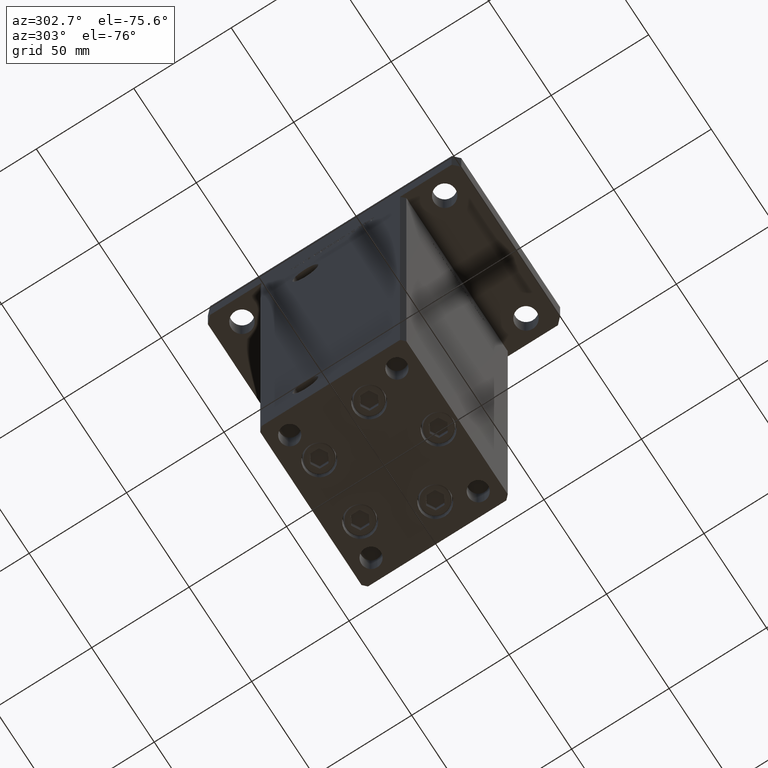
[diagram: clean part render]
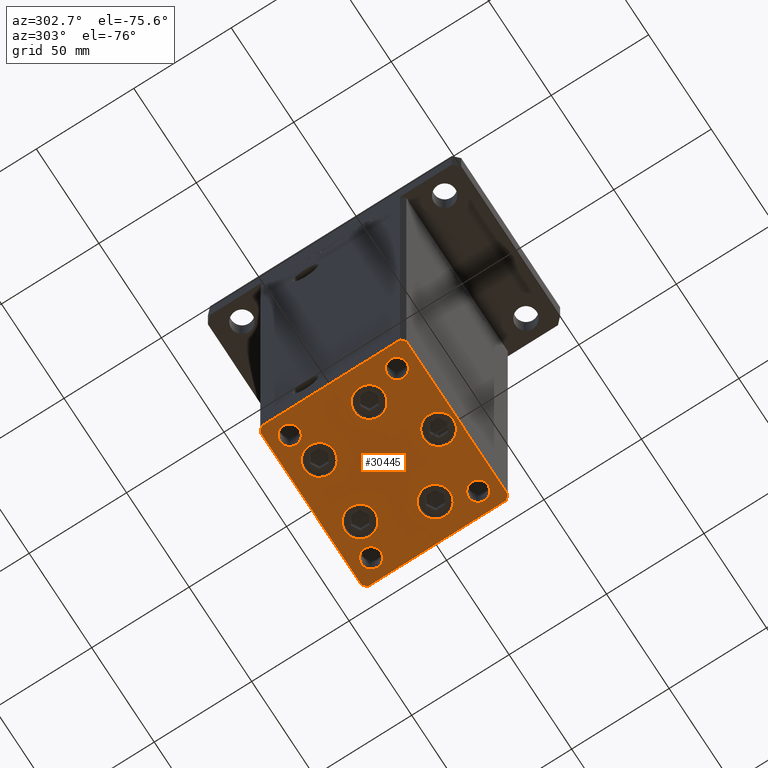
[diagram: same view with one face highlighted and labeled with its STEP entity id]
A machine part, auxiliary view. The second image highlights one B-rep face of the part: STEP entity #30445.
In plain terms, the highlighted planar face has unit normal (0, 0, -1).
Its self-contained STEP definition (entity closure, byte-faithful):
#67 = CARTESIAN_POINT ( 'NONE',  ( 16.32291334290542295, 22.75000000000000000, 0.000000000000000000 ) ) ;
#509 = AXIS2_PLACEMENT_3D ( 'NONE', #43362, #6211, #19212 ) ;
#910 = CARTESIAN_POINT ( 'NONE',  ( -26.39865316429776954, -9.333333333333337478, 0.000000000000000000 ) ) ;
#1427 = CARTESIAN_POINT ( 'NONE',  ( -42.50000000000000711, 35.49999999999997158, 0.000000000000000000 ) ) ;
#1456 = DIRECTION ( 'NONE',  ( 1.000000000000000000, 0.000000000000000000, 0.000000000000000000 ) ) ;
#1735 = EDGE_CURVE ( 'NONE', #12344, #39796, #25607, .T. ) ;
#1984 = AXIS2_PLACEMENT_3D ( 'NONE', #34098, #41986, #4835 ) ;
#2002 = EDGE_CURVE ( 'NONE', #39796, #12344, #46395, .T. ) ;
#2229 = CARTESIAN_POINT ( 'NONE',  ( 34.14865316429776954, -9.333333333333328596, 0.000000000000000000 ) ) ;
#2444 = CIRCLE ( 'NONE', #33596, 5.000000000000000888 ) ;
#2752 = AXIS2_PLACEMENT_3D ( 'NONE', #67, #36649, #24714 ) ;
#2984 = VERTEX_POINT ( 'NONE', #4224 ) ;
#3060 = EDGE_LOOP ( 'NONE', ( #40783, #8840 ) ) ;
#3405 = ORIENTED_EDGE ( 'NONE', *, *, #2002, .F. ) ;
#3641 = VECTOR ( 'NONE', #30944, 1000.000000000000000 ) ;
#3683 = DIRECTION ( 'NONE',  ( -1.172770800660376741E-15, 1.000000000000000000, 0.000000000000000000 ) ) ;
#4087 = CIRCLE ( 'NONE', #25719, 5.000000000000000888 ) ;
#4224 = CARTESIAN_POINT ( 'NONE',  ( -27.50000000000000000, -27.49999999999999645, 0.000000000000000000 ) ) ;
#4677 = DIRECTION ( 'NONE',  ( 0.000000000000000000, -0.000000000000000000, -1.000000000000000000 ) ) ;
#4835 = DIRECTION ( 'NONE',  ( 1.000000000000000000, 0.000000000000000000, 0.000000000000000000 ) ) ;
#4968 = VECTOR ( 'NONE', #46556, 1000.000000000000114 ) ;
#5275 = CARTESIAN_POINT ( 'NONE',  ( -16.32291334290543006, 22.74999999999999645, 0.000000000000000000 ) ) ;
#5277 = CARTESIAN_POINT ( 'NONE',  ( 26.39865316429776954, -9.333333333333330373, 0.000000000000000000 ) ) ;
#5343 = EDGE_CURVE ( 'NONE', #13420, #2984, #4087, .T. ) ;
#5487 = CARTESIAN_POINT ( 'NONE',  ( -32.50000000000000000, 27.50000000000000355, 0.000000000000000000 ) ) ;
#6200 = EDGE_CURVE ( 'NONE', #16035, #25210, #19563, .T. ) ;
#6211 = DIRECTION ( 'NONE',  ( 0.000000000000000000, -0.000000000000000000, -1.000000000000000000 ) ) ;
#6493 = EDGE_CURVE ( 'NONE', #29384, #8744, #20230, .T. ) ;
#6580 = AXIS2_PLACEMENT_3D ( 'NONE', #5275, #30211, #22621 ) ;
#6606 = DIRECTION ( 'NONE',  ( 1.000000000000000000, 1.713307136767217096E-16, 0.000000000000000000 ) ) ;
#7089 = FACE_BOUND ( 'NONE', #10376, .T. ) ;
#8107 = DIRECTION ( 'NONE',  ( 1.000000000000000000, 0.000000000000000000, 0.000000000000000000 ) ) ;
#8204 = CARTESIAN_POINT ( 'NONE',  ( 24.07291334290542650, 22.75000000000000000, 0.000000000000000000 ) ) ;
#8309 = CIRCLE ( 'NONE', #6580, 7.750000000000000000 ) ;
#8345 = DIRECTION ( 'NONE',  ( 1.000000000000000000, 0.000000000000000000, 0.000000000000000000 ) ) ;
#8356 = FACE_BOUND ( 'NONE', #35494, .T. ) ;
#8611 = ORIENTED_EDGE ( 'NONE', *, *, #52147, .T. ) ;
#8628 = FACE_OUTER_BOUND ( 'NONE', #30968, .T. ) ;
#8632 = CARTESIAN_POINT ( 'NONE',  ( 16.32291334290542295, 22.75000000000000000, 0.000000000000000000 ) ) ;
#8744 = VERTEX_POINT ( 'NONE', #9577 ) ;
#8840 = ORIENTED_EDGE ( 'NONE', *, *, #21190, .T. ) ;
#9039 = DIRECTION ( 'NONE',  ( 0.000000000000000000, -0.000000000000000000, -1.000000000000000000 ) ) ;
#9264 = ORIENTED_EDGE ( 'NONE', *, *, #6200, .T. ) ;
#9347 = EDGE_CURVE ( 'NONE', #2984, #13420, #2444, .T. ) ;
#9577 = CARTESIAN_POINT ( 'NONE',  ( 42.49999999999992895, 35.50000000000000000, 0.000000000000000000 ) ) ;
#9851 = DIRECTION ( 'NONE',  ( 0.000000000000000000, -0.000000000000000000, -1.000000000000000000 ) ) ;
#9852 = VERTEX_POINT ( 'NONE', #17670 ) ;
#10118 = EDGE_CURVE ( 'NONE', #22906, #36692, #42287, .T. ) ;
#10290 = VERTEX_POINT ( 'NONE', #25930 ) ;
#10362 = EDGE_CURVE ( 'NONE', #25210, #16035, #51194, .T. ) ;
#10376 = EDGE_LOOP ( 'NONE', ( #13886, #47735 ) ) ;
#10478 = VERTEX_POINT ( 'NONE', #20130 ) ;
#11327 = CARTESIAN_POINT ( 'NONE',  ( 42.50000000000000711, -35.50000000000000000, 0.000000000000000000 ) ) ;
#11724 = CARTESIAN_POINT ( 'NONE',  ( 32.50000000000000000, 27.49999999999999645, 0.000000000000000000 ) ) ;
#12344 = VERTEX_POINT ( 'NONE', #35189 ) ;
#12496 = ORIENTED_EDGE ( 'NONE', *, *, #49759, .F. ) ;
#12689 = FACE_BOUND ( 'NONE', #3060, .T. ) ;
#12891 = CARTESIAN_POINT ( 'NONE',  ( 27.50000000000000355, -27.49999999999999645, 0.000000000000000000 ) ) ;
#13420 = VERTEX_POINT ( 'NONE', #40580 ) ;
#13497 = VECTOR ( 'NONE', #6606, 1000.000000000000000 ) ;
#13625 = LINE ( 'NONE', #51291, #31647 ) ;
#13709 = CIRCLE ( 'NONE', #44009, 7.750000000000000000 ) ;
#13841 = ORIENTED_EDGE ( 'NONE', *, *, #5343, .T. ) ;
#13886 = ORIENTED_EDGE ( 'NONE', *, *, #10118, .T. ) ;
#14144 = VERTEX_POINT ( 'NONE', #37315 ) ;
#14864 = AXIS2_PLACEMENT_3D ( 'NONE', #28117, #44133, #51990 ) ;
#15248 = CIRCLE ( 'NONE', #509, 4.999999999999997335 ) ;
#15404 = ORIENTED_EDGE ( 'NONE', *, *, #49518, .T. ) ;
#15743 = EDGE_LOOP ( 'NONE', ( #40907, #29226 ) ) ;
#16011 = VERTEX_POINT ( 'NONE', #16970 ) ;
#16016 = DIRECTION ( 'NONE',  ( 0.000000000000000000, -0.000000000000000000, -1.000000000000000000 ) ) ;
#16035 = VERTEX_POINT ( 'NONE', #21571 ) ;
#16078 = DIRECTION ( 'NONE',  ( 1.000000000000000000, 0.000000000000000000, 0.000000000000000000 ) ) ;
#16122 = AXIS2_PLACEMENT_3D ( 'NONE', #8632, #17577, #38186 ) ;
#16481 = VERTEX_POINT ( 'NONE', #1427 ) ;
#16487 = ORIENTED_EDGE ( 'NONE', *, *, #40042, .T. ) ;
#16970 = CARTESIAN_POINT ( 'NONE',  ( -40.49999999999999289, -37.50000000000002132, 0.000000000000000000 ) ) ;
#17577 = DIRECTION ( 'NONE',  ( 0.000000000000000000, -0.000000000000000000, -1.000000000000000000 ) ) ;
#17618 = VECTOR ( 'NONE', #46641, 1000.000000000000114 ) ;
#17670 = CARTESIAN_POINT ( 'NONE',  ( 37.50000000000000000, 27.49999999999999645, 0.000000000000000000 ) ) ;
#17752 = DIRECTION ( 'NONE',  ( 1.000000000000000000, 0.000000000000000000, 0.000000000000000000 ) ) ;
#18025 = DIRECTION ( 'NONE',  ( 1.000000000000000000, 0.000000000000000000, 0.000000000000000000 ) ) ;
#18172 = LINE ( 'NONE', #33636, #17618 ) ;
#18276 = EDGE_LOOP ( 'NONE', ( #3405, #20922 ) ) ;
#18433 = CIRCLE ( 'NONE', #40952, 4.999999999999997335 ) ;
#18507 = EDGE_LOOP ( 'NONE', ( #27466, #12496 ) ) ;
#18547 = AXIS2_PLACEMENT_3D ( 'NONE', #49552, #24886, #25155 ) ;
#19212 = DIRECTION ( 'NONE',  ( 1.000000000000000000, 0.000000000000000000, 0.000000000000000000 ) ) ;
#19556 = FACE_BOUND ( 'NONE', #34949, .T. ) ;
#19563 = CIRCLE ( 'NONE', #16122, 7.750000000000003553 ) ;
#20130 = CARTESIAN_POINT ( 'NONE',  ( 37.50000000000000000, -27.49999999999999645, 0.000000000000000000 ) ) ;
#20230 = LINE ( 'NONE', #53282, #26487 ) ;
#20681 = CARTESIAN_POINT ( 'NONE',  ( -26.39865316429776954, -9.333333333333337478, 0.000000000000000000 ) ) ;
#20922 = ORIENTED_EDGE ( 'NONE', *, *, #1735, .F. ) ;
#21099 = EDGE_CURVE ( 'NONE', #52477, #48159, #48649, .T. ) ;
#21190 = EDGE_CURVE ( 'NONE', #43226, #30464, #26047, .T. ) ;
#21346 = VERTEX_POINT ( 'NONE', #50057 ) ;
#21571 = CARTESIAN_POINT ( 'NONE',  ( 8.572913342905422951, 22.75000000000000000, 0.000000000000000000 ) ) ;
#21642 = CARTESIAN_POINT ( 'NONE',  ( -34.14865316429776954, -9.333333333333337478, 0.000000000000000000 ) ) ;
#21900 = ORIENTED_EDGE ( 'NONE', *, *, #9347, .T. ) ;
#22106 = CARTESIAN_POINT ( 'NONE',  ( 26.39865316429776954, -9.333333333333330373, 0.000000000000000000 ) ) ;
#22228 = ORIENTED_EDGE ( 'NONE', *, *, #48701, .T. ) ;
#22621 = DIRECTION ( 'NONE',  ( 1.000000000000000000, 0.000000000000000000, 0.000000000000000000 ) ) ;
#22642 = DIRECTION ( 'NONE',  ( 0.000000000000000000, -0.000000000000000000, -1.000000000000000000 ) ) ;
#22906 = VERTEX_POINT ( 'NONE', #31729 ) ;
#23617 = FACE_BOUND ( 'NONE', #18507, .T. ) ;
#23620 = EDGE_CURVE ( 'NONE', #26211, #16481, #38300, .T. ) ;
#23666 = CARTESIAN_POINT ( 'NONE',  ( -40.49999999999999289, -37.50000000000002132, 0.000000000000000000 ) ) ;
#23915 = CARTESIAN_POINT ( 'NONE',  ( -18.64865316429776954, -9.333333333333335702, 0.000000000000000000 ) ) ;
#24339 = CARTESIAN_POINT ( 'NONE',  ( -32.50000000000000000, -27.49999999999999645, 0.000000000000000000 ) ) ;
#24496 = CARTESIAN_POINT ( 'NONE',  ( -42.50000000000000000, -35.50000000000000711, 0.000000000000000000 ) ) ;
#24607 = EDGE_LOOP ( 'NONE', ( #16487, #8611 ) ) ;
#24714 = DIRECTION ( 'NONE',  ( 1.000000000000000000, 0.000000000000000000, 0.000000000000000000 ) ) ;
#24886 = DIRECTION ( 'NONE',  ( -0.000000000000000000, 0.000000000000000000, 1.000000000000000000 ) ) ;
#25155 = DIRECTION ( 'NONE',  ( 1.000000000000000000, 0.000000000000000000, 0.000000000000000000 ) ) ;
#25210 = VERTEX_POINT ( 'NONE', #8204 ) ;
#25607 = CIRCLE ( 'NONE', #35961, 5.000000000000000888 ) ;
#25719 = AXIS2_PLACEMENT_3D ( 'NONE', #24339, #45493, #8345 ) ;
#25930 = CARTESIAN_POINT ( 'NONE',  ( 40.49999999999991473, 37.50000000000000711, 0.000000000000000000 ) ) ;
#26047 = CIRCLE ( 'NONE', #48566, 7.750000000000000000 ) ;
#26211 = VERTEX_POINT ( 'NONE', #52099 ) ;
#26487 = VECTOR ( 'NONE', #3683, 1000.000000000000000 ) ;
#26529 = CARTESIAN_POINT ( 'NONE',  ( 40.49999999999991473, 37.50000000000000711, 0.000000000000000000 ) ) ;
#26597 = EDGE_CURVE ( 'NONE', #9852, #14144, #45285, .T. ) ;
#27192 = EDGE_CURVE ( 'NONE', #10478, #31884, #18433, .T. ) ;
#27466 = ORIENTED_EDGE ( 'NONE', *, *, #26597, .F. ) ;
#27479 = AXIS2_PLACEMENT_3D ( 'NONE', #5277, #30741, #17752 ) ;
#27932 = EDGE_CURVE ( 'NONE', #52576, #29384, #18172, .T. ) ;
#28002 = LINE ( 'NONE', #39677, #40451 ) ;
#28117 = CARTESIAN_POINT ( 'NONE',  ( 3.429011037612589276E-15, -28.00000000000000000, 0.000000000000000000 ) ) ;
#28765 = AXIS2_PLACEMENT_3D ( 'NONE', #22106, #22642, #38642 ) ;
#29226 = ORIENTED_EDGE ( 'NONE', *, *, #40547, .T. ) ;
#29384 = VERTEX_POINT ( 'NONE', #11327 ) ;
#30007 = LINE ( 'NONE', #34613, #4968 ) ;
#30155 = DIRECTION ( 'NONE',  ( 1.000000000000000000, 0.000000000000000000, 0.000000000000000000 ) ) ;
#30211 = DIRECTION ( 'NONE',  ( 0.000000000000000000, -0.000000000000000000, -1.000000000000000000 ) ) ;
#30445 = ADVANCED_FACE ( 'NONE', ( #44240, #53614, #8356, #7089, #12689, #23617, #40159, #45774, #8628, #19556 ), #48550, .T. ) ;
#30464 = VERTEX_POINT ( 'NONE', #21642 ) ;
#30741 = DIRECTION ( 'NONE',  ( 0.000000000000000000, -0.000000000000000000, -1.000000000000000000 ) ) ;
#30944 = DIRECTION ( 'NONE',  ( -0.7071067811865463515, -0.7071067811865487940, 0.000000000000000000 ) ) ;
#30968 = EDGE_LOOP ( 'NONE', ( #22228, #42790, #33315, #32931, #35621, #42155, #51506, #37917 ) ) ;
#31128 = LINE ( 'NONE', #26529, #35251 ) ;
#31647 = VECTOR ( 'NONE', #42646, 1000.000000000000000 ) ;
#31729 = CARTESIAN_POINT ( 'NONE',  ( -7.749999999999996447, -28.00000000000000000, 0.000000000000000000 ) ) ;
#31835 = EDGE_CURVE ( 'NONE', #36692, #22906, #45440, .T. ) ;
#31884 = VERTEX_POINT ( 'NONE', #12891 ) ;
#32336 = ORIENTED_EDGE ( 'NONE', *, *, #21099, .T. ) ;
#32777 = CARTESIAN_POINT ( 'NONE',  ( -32.50000000000000000, -27.49999999999999645, 0.000000000000000000 ) ) ;
#32906 = VERTEX_POINT ( 'NONE', #24496 ) ;
#32931 = ORIENTED_EDGE ( 'NONE', *, *, #6493, .T. ) ;
#32946 = EDGE_CURVE ( 'NONE', #30464, #43226, #49797, .T. ) ;
#33315 = ORIENTED_EDGE ( 'NONE', *, *, #27932, .T. ) ;
#33396 = DIRECTION ( 'NONE',  ( 1.000000000000000000, 0.000000000000000000, 0.000000000000000000 ) ) ;
#33478 = CARTESIAN_POINT ( 'NONE',  ( -32.50000000000000000, 27.50000000000000355, 0.000000000000000000 ) ) ;
#33596 = AXIS2_PLACEMENT_3D ( 'NONE', #32777, #42738, #8107 ) ;
#33636 = CARTESIAN_POINT ( 'NONE',  ( 40.50000000000000000, -37.50000000000000711, 0.000000000000000000 ) ) ;
#33860 = CARTESIAN_POINT ( 'NONE',  ( -8.572913342905431833, 22.74999999999999645, 0.000000000000000000 ) ) ;
#34098 = CARTESIAN_POINT ( 'NONE',  ( 32.50000000000000000, 27.49999999999999645, 0.000000000000000000 ) ) ;
#34239 = DIRECTION ( 'NONE',  ( 1.000000000000000000, 0.000000000000000000, 0.000000000000000000 ) ) ;
#34613 = CARTESIAN_POINT ( 'NONE',  ( 42.49999999999992895, 35.50000000000000000, 0.000000000000000000 ) ) ;
#34840 = EDGE_CURVE ( 'NONE', #16481, #32906, #13625, .T. ) ;
#34949 = EDGE_LOOP ( 'NONE', ( #21900, #13841 ) ) ;
#35189 = CARTESIAN_POINT ( 'NONE',  ( -37.50000000000000711, 27.50000000000000355, 0.000000000000000000 ) ) ;
#35251 = VECTOR ( 'NONE', #47134, 1000.000000000000000 ) ;
#35494 = EDGE_LOOP ( 'NONE', ( #32336, #15404 ) ) ;
#35621 = ORIENTED_EDGE ( 'NONE', *, *, #44825, .T. ) ;
#35857 = DIRECTION ( 'NONE',  ( 0.7071067811865463515, -0.7071067811865487940, 0.000000000000000000 ) ) ;
#35961 = AXIS2_PLACEMENT_3D ( 'NONE', #33478, #50285, #18025 ) ;
#36649 = DIRECTION ( 'NONE',  ( 0.000000000000000000, -0.000000000000000000, -1.000000000000000000 ) ) ;
#36692 = VERTEX_POINT ( 'NONE', #40180 ) ;
#36734 = ORIENTED_EDGE ( 'NONE', *, *, #10362, .T. ) ;
#37315 = CARTESIAN_POINT ( 'NONE',  ( 27.50000000000000355, 27.49999999999999645, 0.000000000000000000 ) ) ;
#37499 = DIRECTION ( 'NONE',  ( -0.000000000000000000, 0.000000000000000000, 1.000000000000000000 ) ) ;
#37917 = ORIENTED_EDGE ( 'NONE', *, *, #34840, .T. ) ;
#38039 = DIRECTION ( 'NONE',  ( -0.000000000000000000, 0.000000000000000000, 1.000000000000000000 ) ) ;
#38186 = DIRECTION ( 'NONE',  ( 1.000000000000000000, 0.000000000000000000, 0.000000000000000000 ) ) ;
#38300 = LINE ( 'NONE', #51012, #3641 ) ;
#38642 = DIRECTION ( 'NONE',  ( 1.000000000000000000, 0.000000000000000000, 0.000000000000000000 ) ) ;
#38808 = CARTESIAN_POINT ( 'NONE',  ( 18.64865316429776954, -9.333333333333330373, 0.000000000000000000 ) ) ;
#39677 = CARTESIAN_POINT ( 'NONE',  ( -42.50000000000000000, -35.50000000000000711, 0.000000000000000000 ) ) ;
#39796 = VERTEX_POINT ( 'NONE', #48370 ) ;
#40042 = EDGE_CURVE ( 'NONE', #21346, #43683, #8309, .T. ) ;
#40091 = EDGE_CURVE ( 'NONE', #16011, #52576, #51877, .T. ) ;
#40159 = FACE_BOUND ( 'NONE', #15743, .T. ) ;
#40180 = CARTESIAN_POINT ( 'NONE',  ( 7.750000000000003553, -28.00000000000000000, 0.000000000000000000 ) ) ;
#40451 = VECTOR ( 'NONE', #35857, 1000.000000000000000 ) ;
#40547 = EDGE_CURVE ( 'NONE', #31884, #10478, #15248, .T. ) ;
#40580 = CARTESIAN_POINT ( 'NONE',  ( -37.50000000000000711, -27.49999999999999645, 0.000000000000000000 ) ) ;
#40783 = ORIENTED_EDGE ( 'NONE', *, *, #32946, .T. ) ;
#40907 = ORIENTED_EDGE ( 'NONE', *, *, #27192, .T. ) ;
#40952 = AXIS2_PLACEMENT_3D ( 'NONE', #53414, #16016, #49349 ) ;
#41111 = AXIS2_PLACEMENT_3D ( 'NONE', #52745, #45432, #45166 ) ;
#41986 = DIRECTION ( 'NONE',  ( -0.000000000000000000, 0.000000000000000000, 1.000000000000000000 ) ) ;
#42073 = AXIS2_PLACEMENT_3D ( 'NONE', #5487, #38039, #30155 ) ;
#42155 = ORIENTED_EDGE ( 'NONE', *, *, #44519, .T. ) ;
#42287 = CIRCLE ( 'NONE', #14864, 7.750000000000000000 ) ;
#42646 = DIRECTION ( 'NONE',  ( 9.773090005503140331E-17, -1.000000000000000000, 0.000000000000000000 ) ) ;
#42738 = DIRECTION ( 'NONE',  ( 0.000000000000000000, -0.000000000000000000, -1.000000000000000000 ) ) ;
#42790 = ORIENTED_EDGE ( 'NONE', *, *, #40091, .T. ) ;
#43226 = VERTEX_POINT ( 'NONE', #23915 ) ;
#43362 = CARTESIAN_POINT ( 'NONE',  ( 32.50000000000000000, -27.49999999999999645, 0.000000000000000000 ) ) ;
#43683 = VERTEX_POINT ( 'NONE', #33860 ) ;
#44009 = AXIS2_PLACEMENT_3D ( 'NONE', #51329, #9851, #1456 ) ;
#44133 = DIRECTION ( 'NONE',  ( 0.000000000000000000, -0.000000000000000000, -1.000000000000000000 ) ) ;
#44240 = FACE_BOUND ( 'NONE', #24607, .T. ) ;
#44252 = EDGE_LOOP ( 'NONE', ( #9264, #36734 ) ) ;
#44519 = EDGE_CURVE ( 'NONE', #10290, #26211, #31128, .T. ) ;
#44825 = EDGE_CURVE ( 'NONE', #8744, #10290, #30007, .T. ) ;
#45166 = DIRECTION ( 'NONE',  ( 1.000000000000000000, 0.000000000000000000, 0.000000000000000000 ) ) ;
#45285 = CIRCLE ( 'NONE', #1984, 4.999999999999997335 ) ;
#45432 = DIRECTION ( 'NONE',  ( 0.000000000000000000, -0.000000000000000000, -1.000000000000000000 ) ) ;
#45440 = CIRCLE ( 'NONE', #41111, 7.750000000000000000 ) ;
#45493 = DIRECTION ( 'NONE',  ( 0.000000000000000000, -0.000000000000000000, -1.000000000000000000 ) ) ;
#45774 = FACE_BOUND ( 'NONE', #18276, .T. ) ;
#46395 = CIRCLE ( 'NONE', #42073, 5.000000000000000888 ) ;
#46556 = DIRECTION ( 'NONE',  ( -0.7071067811865474617, 0.7071067811865474617, 0.000000000000000000 ) ) ;
#46641 = DIRECTION ( 'NONE',  ( 0.7071067811865474617, 0.7071067811865474617, 0.000000000000000000 ) ) ;
#47134 = DIRECTION ( 'NONE',  ( -1.000000000000000000, -3.426614273534436165E-16, 0.000000000000000000 ) ) ;
#47735 = ORIENTED_EDGE ( 'NONE', *, *, #31835, .T. ) ;
#48159 = VERTEX_POINT ( 'NONE', #2229 ) ;
#48370 = CARTESIAN_POINT ( 'NONE',  ( -27.50000000000000000, 27.50000000000000355, 0.000000000000000000 ) ) ;
#48550 = PLANE ( 'NONE',  #18547 ) ;
#48566 = AXIS2_PLACEMENT_3D ( 'NONE', #20681, #4677, #33396 ) ;
#48649 = CIRCLE ( 'NONE', #28765, 7.750000000000000000 ) ;
#48701 = EDGE_CURVE ( 'NONE', #32906, #16011, #28002, .T. ) ;
#49140 = CIRCLE ( 'NONE', #50884, 4.999999999999997335 ) ;
#49349 = DIRECTION ( 'NONE',  ( 1.000000000000000000, 0.000000000000000000, 0.000000000000000000 ) ) ;
#49518 = EDGE_CURVE ( 'NONE', #48159, #52477, #50853, .T. ) ;
#49552 = CARTESIAN_POINT ( 'NONE',  ( 0.000000000000000000, 0.000000000000000000, 0.000000000000000000 ) ) ;
#49759 = EDGE_CURVE ( 'NONE', #14144, #9852, #49140, .T. ) ;
#49797 = CIRCLE ( 'NONE', #51504, 7.750000000000000000 ) ;
#50057 = CARTESIAN_POINT ( 'NONE',  ( -24.07291334290543006, 22.74999999999999645, 0.000000000000000000 ) ) ;
#50285 = DIRECTION ( 'NONE',  ( -0.000000000000000000, 0.000000000000000000, 1.000000000000000000 ) ) ;
#50853 = CIRCLE ( 'NONE', #27479, 7.750000000000000000 ) ;
#50884 = AXIS2_PLACEMENT_3D ( 'NONE', #11724, #37499, #16078 ) ;
#51012 = CARTESIAN_POINT ( 'NONE',  ( -40.50000000000000711, 37.49999999999997868, 0.000000000000000000 ) ) ;
#51194 = CIRCLE ( 'NONE', #2752, 7.750000000000003553 ) ;
#51291 = CARTESIAN_POINT ( 'NONE',  ( -42.50000000000000711, 35.49999999999997158, 0.000000000000000000 ) ) ;
#51329 = CARTESIAN_POINT ( 'NONE',  ( -16.32291334290543006, 22.74999999999999645, 0.000000000000000000 ) ) ;
#51504 = AXIS2_PLACEMENT_3D ( 'NONE', #910, #9039, #34239 ) ;
#51506 = ORIENTED_EDGE ( 'NONE', *, *, #23620, .T. ) ;
#51877 = LINE ( 'NONE', #23666, #13497 ) ;
#51990 = DIRECTION ( 'NONE',  ( 1.000000000000000000, 0.000000000000000000, 0.000000000000000000 ) ) ;
#52099 = CARTESIAN_POINT ( 'NONE',  ( -40.50000000000000711, 37.49999999999997868, 0.000000000000000000 ) ) ;
#52147 = EDGE_CURVE ( 'NONE', #43683, #21346, #13709, .T. ) ;
#52477 = VERTEX_POINT ( 'NONE', #38808 ) ;
#52576 = VERTEX_POINT ( 'NONE', #52584 ) ;
#52584 = CARTESIAN_POINT ( 'NONE',  ( 40.50000000000000000, -37.50000000000000711, 0.000000000000000000 ) ) ;
#52745 = CARTESIAN_POINT ( 'NONE',  ( 3.429011037612589276E-15, -28.00000000000000000, 0.000000000000000000 ) ) ;
#53282 = CARTESIAN_POINT ( 'NONE',  ( 42.50000000000000711, -35.50000000000000000, 0.000000000000000000 ) ) ;
#53414 = CARTESIAN_POINT ( 'NONE',  ( 32.50000000000000000, -27.49999999999999645, 0.000000000000000000 ) ) ;
#53614 = FACE_BOUND ( 'NONE', #44252, .T. ) ;